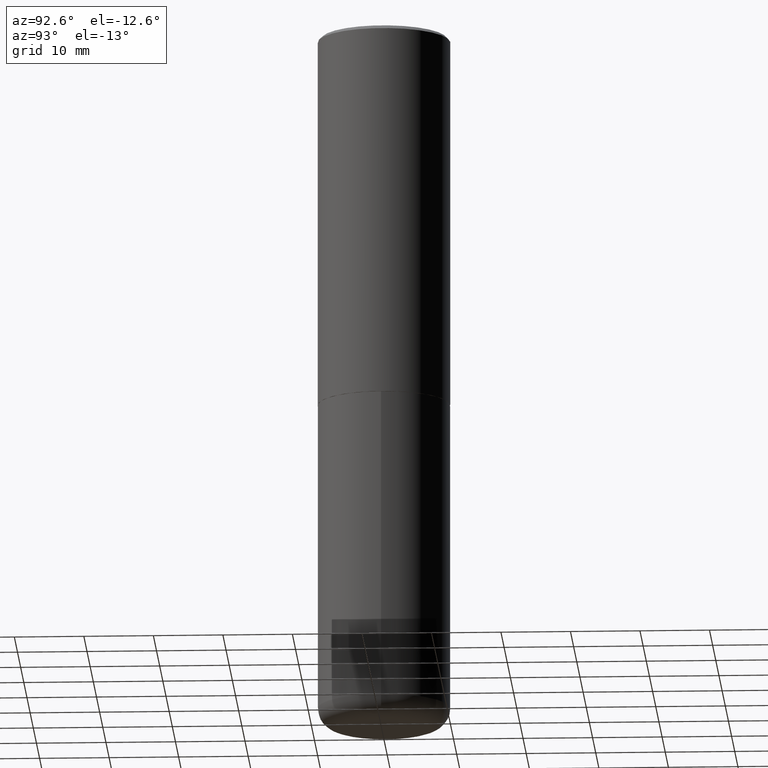
[diagram: clean part render]
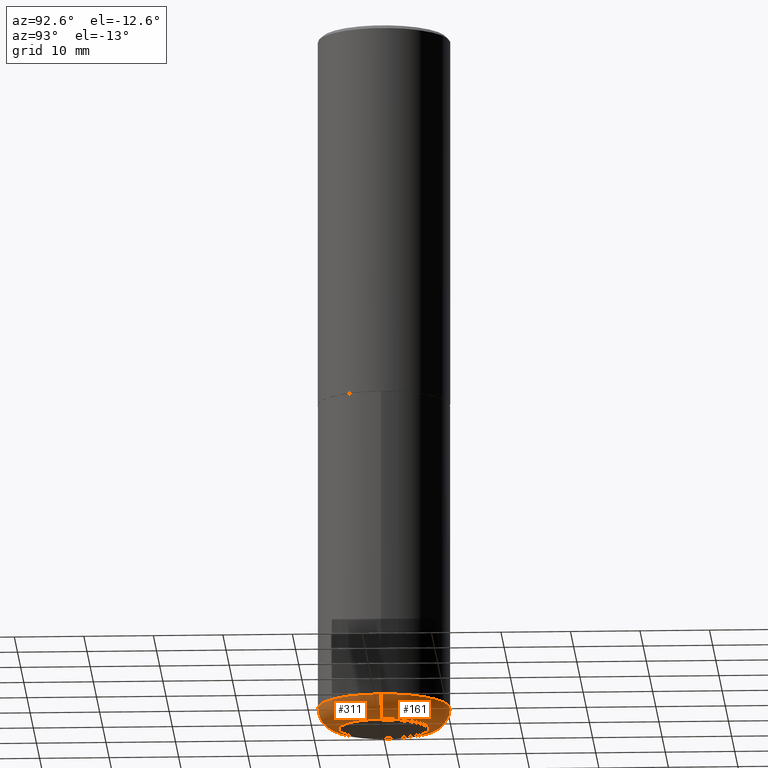
[diagram: same view with one multi-face feature highlighted, each face labeled with its STEP entity id]
A machine part, auxiliary view. The highlighted faces form ONE feature: a constant-radius fillet chain: 2 tangent blend faces with common blend radius 3.048 mm. The faces share edges in the B-rep.
Their STEP definitions:
[1] entity #161 (Torus):
#20 = ORIENTED_EDGE ( 'NONE', *, *, #364, .T. ) ;
#21 = DIRECTION ( 'NONE',  ( 7.105427357601001859E-15, 1.000000000000000000, -3.491481338843145583E-15 ) ) ;
#25 = DIRECTION ( 'NONE',  ( -2.445468806185136597E-29, 3.491481338843145583E-15, 1.000000000000000000 ) ) ;
#43 = AXIS2_PLACEMENT_3D ( 'NONE', #44, #350, #157 ) ;
#44 = CARTESIAN_POINT ( 'NONE',  ( 9.488418967998330085E-29, -1.354694759471140570E-14, -3.880000000000000338 ) ) ;
#53 = ORIENTED_EDGE ( 'NONE', *, *, #324, .F. ) ;
#56 = CARTESIAN_POINT ( 'NONE',  ( 0.2550000000000000044, -1.574658083818258381E-14, -4.000000000000000888 ) ) ;
#91 = CARTESIAN_POINT ( 'NONE',  ( 0.3750000000000001110, -1.616555859884375729E-14, -3.880000000000000338 ) ) ;
#94 = AXIS2_PLACEMENT_3D ( 'NONE', #231, #25, #293 ) ;
#112 = VERTEX_POINT ( 'NONE', #56 ) ;
#120 = AXIS2_PLACEMENT_3D ( 'NONE', #341, #309, #167 ) ;
#127 = CARTESIAN_POINT ( 'NONE',  ( -0.3750000000000001110, -1.088241233561102684E-14, -3.880000000000000338 ) ) ;
#131 = CARTESIAN_POINT ( 'NONE',  ( -0.2550000000000000044, -1.151822685739767881E-14, -4.000000000000000888 ) ) ;
#135 = EDGE_CURVE ( 'NONE', #151, #386, #242, .T. ) ;
#136 = ORIENTED_EDGE ( 'NONE', *, *, #135, .T. ) ;
#137 = CARTESIAN_POINT ( 'NONE',  ( -0.2550000000000000044, -1.173506361852314940E-14, -3.880000000000000338 ) ) ;
#151 = VERTEX_POINT ( 'NONE', #131 ) ;
#157 = DIRECTION ( 'NONE',  ( 1.000000000000000000, -6.982962677686266711E-15, 0.000000000000000000 ) ) ;
#161 = ADVANCED_FACE ( 'NONE', ( #270 ), #184, .T. ) ;
#167 = DIRECTION ( 'NONE',  ( 1.000000000000000000, -6.982962677686263555E-15, 4.883557194083111219E-29 ) ) ;
#173 = DIRECTION ( 'NONE',  ( -6.982962677686266711E-15, -1.000000000000000000, 3.491481338843145583E-15 ) ) ;
#174 = ORIENTED_EDGE ( 'NONE', *, *, #383, .F. ) ;
#184 = TOROIDAL_SURFACE ( 'NONE', #120, 0.2550000000000000044, 0.1200000000000001898 ) ;
#231 = CARTESIAN_POINT ( 'NONE',  ( 9.781875224740547508E-29, -1.396592535537258391E-14, -4.000000000000000888 ) ) ;
#242 = CIRCLE ( 'NONE', #315, 0.1200000000000002176 ) ;
#270 = FACE_OUTER_BOUND ( 'NONE', #290, .T. ) ;
#290 = EDGE_LOOP ( 'NONE', ( #20, #136, #174, #53 ) ) ;
#293 = DIRECTION ( 'NONE',  ( 1.000000000000000000, -6.982962677686267499E-15, 0.000000000000000000 ) ) ;
#301 = AXIS2_PLACEMENT_3D ( 'NONE', #339, #173, #323 ) ;
#309 = DIRECTION ( 'NONE',  ( -2.445468806185136597E-29, 3.491481338843145583E-15, 1.000000000000000000 ) ) ;
#315 = AXIS2_PLACEMENT_3D ( 'NONE', #137, #21, #408 ) ;
#323 = DIRECTION ( 'NONE',  ( 1.000000000000000000, -6.982962677686272233E-15, 0.000000000000000000 ) ) ;
#324 = EDGE_CURVE ( 'NONE', #112, #393, #410, .T. ) ;
#339 = CARTESIAN_POINT ( 'NONE',  ( 0.2550000000000000044, -1.532760307752140402E-14, -3.880000000000000338 ) ) ;
#341 = CARTESIAN_POINT ( 'NONE',  ( 9.488418967998330085E-29, -1.354694759471140570E-14, -3.880000000000000338 ) ) ;
#350 = DIRECTION ( 'NONE',  ( -2.445468806185136597E-29, 3.491481338843145583E-15, 1.000000000000000000 ) ) ;
#364 = EDGE_CURVE ( 'NONE', #112, #151, #416, .T. ) ;
#376 = CIRCLE ( 'NONE', #43, 0.3750000000000000555 ) ;
#383 = EDGE_CURVE ( 'NONE', #393, #386, #376, .T. ) ;
#386 = VERTEX_POINT ( 'NONE', #127 ) ;
#393 = VERTEX_POINT ( 'NONE', #91 ) ;
#408 = DIRECTION ( 'NONE',  ( -1.000000000000000000, 7.105427357600994759E-15, 0.000000000000000000 ) ) ;
#410 = CIRCLE ( 'NONE', #301, 0.1200000000000002176 ) ;
#416 = CIRCLE ( 'NONE', #94, 0.2550000000000000044 ) ;
[2] entity #311 (Torus):
#9 = TOROIDAL_SURFACE ( 'NONE', #83, 0.2550000000000000044, 0.1200000000000001898 ) ;
#21 = DIRECTION ( 'NONE',  ( 7.105427357601001859E-15, 1.000000000000000000, -3.491481338843145583E-15 ) ) ;
#24 = DIRECTION ( 'NONE',  ( 1.000000000000000000, -6.982962677686263555E-15, 4.883557194083111219E-29 ) ) ;
#56 = CARTESIAN_POINT ( 'NONE',  ( 0.2550000000000000044, -1.574658083818258381E-14, -4.000000000000000888 ) ) ;
#74 = DIRECTION ( 'NONE',  ( -2.445468806185136597E-29, 3.491481338843145583E-15, 1.000000000000000000 ) ) ;
#83 = AXIS2_PLACEMENT_3D ( 'NONE', #178, #74, #24 ) ;
#91 = CARTESIAN_POINT ( 'NONE',  ( 0.3750000000000001110, -1.616555859884375729E-14, -3.880000000000000338 ) ) ;
#106 = DIRECTION ( 'NONE',  ( -2.445468806185136597E-29, 3.491481338843145583E-15, 1.000000000000000000 ) ) ;
#112 = VERTEX_POINT ( 'NONE', #56 ) ;
#127 = CARTESIAN_POINT ( 'NONE',  ( -0.3750000000000001110, -1.088241233561102684E-14, -3.880000000000000338 ) ) ;
#131 = CARTESIAN_POINT ( 'NONE',  ( -0.2550000000000000044, -1.151822685739767881E-14, -4.000000000000000888 ) ) ;
#135 = EDGE_CURVE ( 'NONE', #151, #386, #242, .T. ) ;
#137 = CARTESIAN_POINT ( 'NONE',  ( -0.2550000000000000044, -1.173506361852314940E-14, -3.880000000000000338 ) ) ;
#147 = ORIENTED_EDGE ( 'NONE', *, *, #324, .T. ) ;
#151 = VERTEX_POINT ( 'NONE', #131 ) ;
#169 = DIRECTION ( 'NONE',  ( 1.000000000000000000, -6.982962677686266711E-15, 0.000000000000000000 ) ) ;
#173 = DIRECTION ( 'NONE',  ( -6.982962677686266711E-15, -1.000000000000000000, 3.491481338843145583E-15 ) ) ;
#178 = CARTESIAN_POINT ( 'NONE',  ( 9.488418967998330085E-29, -1.354694759471140570E-14, -3.880000000000000338 ) ) ;
#190 = ORIENTED_EDGE ( 'NONE', *, *, #135, .F. ) ;
#211 = AXIS2_PLACEMENT_3D ( 'NONE', #326, #218, #223 ) ;
#215 = CARTESIAN_POINT ( 'NONE',  ( 9.488418967998330085E-29, -1.354694759471140570E-14, -3.880000000000000338 ) ) ;
#218 = DIRECTION ( 'NONE',  ( -2.445468806185136597E-29, 3.491481338843145583E-15, 1.000000000000000000 ) ) ;
#223 = DIRECTION ( 'NONE',  ( 1.000000000000000000, -6.982962677686267499E-15, 0.000000000000000000 ) ) ;
#242 = CIRCLE ( 'NONE', #315, 0.1200000000000002176 ) ;
#244 = FACE_OUTER_BOUND ( 'NONE', #358, .T. ) ;
#254 = EDGE_CURVE ( 'NONE', #386, #393, #280, .T. ) ;
#258 = CIRCLE ( 'NONE', #211, 0.2550000000000000044 ) ;
#279 = AXIS2_PLACEMENT_3D ( 'NONE', #215, #106, #169 ) ;
#280 = CIRCLE ( 'NONE', #279, 0.3750000000000000555 ) ;
#294 = ORIENTED_EDGE ( 'NONE', *, *, #254, .F. ) ;
#301 = AXIS2_PLACEMENT_3D ( 'NONE', #339, #173, #323 ) ;
#311 = ADVANCED_FACE ( 'NONE', ( #244 ), #9, .T. ) ;
#315 = AXIS2_PLACEMENT_3D ( 'NONE', #137, #21, #408 ) ;
#323 = DIRECTION ( 'NONE',  ( 1.000000000000000000, -6.982962677686272233E-15, 0.000000000000000000 ) ) ;
#324 = EDGE_CURVE ( 'NONE', #112, #393, #410, .T. ) ;
#326 = CARTESIAN_POINT ( 'NONE',  ( 9.781875224740547508E-29, -1.396592535537258391E-14, -4.000000000000000888 ) ) ;
#339 = CARTESIAN_POINT ( 'NONE',  ( 0.2550000000000000044, -1.532760307752140402E-14, -3.880000000000000338 ) ) ;
#358 = EDGE_LOOP ( 'NONE', ( #190, #366, #147, #294 ) ) ;
#366 = ORIENTED_EDGE ( 'NONE', *, *, #370, .T. ) ;
#370 = EDGE_CURVE ( 'NONE', #151, #112, #258, .T. ) ;
#386 = VERTEX_POINT ( 'NONE', #127 ) ;
#393 = VERTEX_POINT ( 'NONE', #91 ) ;
#408 = DIRECTION ( 'NONE',  ( -1.000000000000000000, 7.105427357600994759E-15, 0.000000000000000000 ) ) ;
#410 = CIRCLE ( 'NONE', #301, 0.1200000000000002176 ) ;